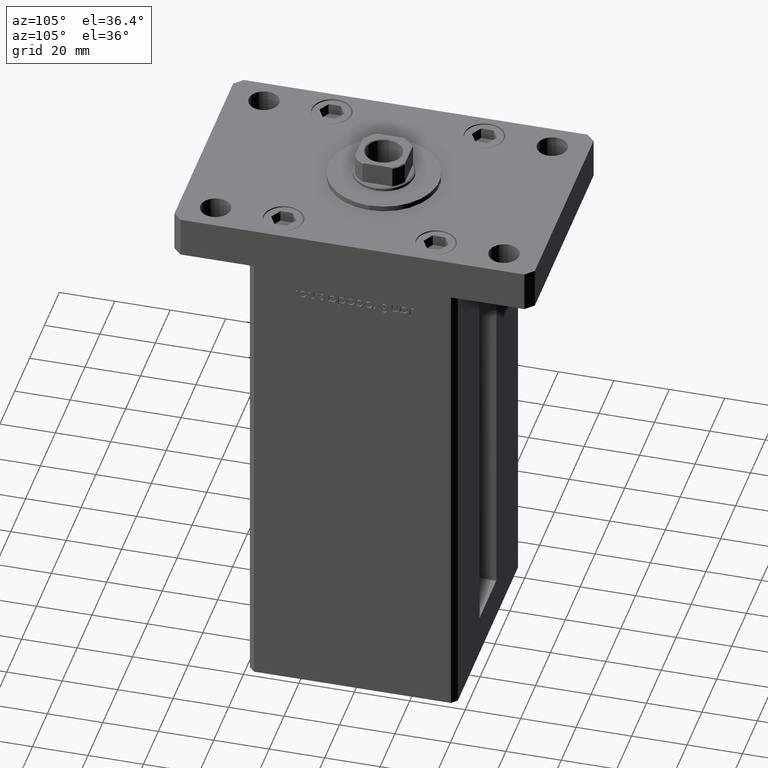
[diagram: clean part render]
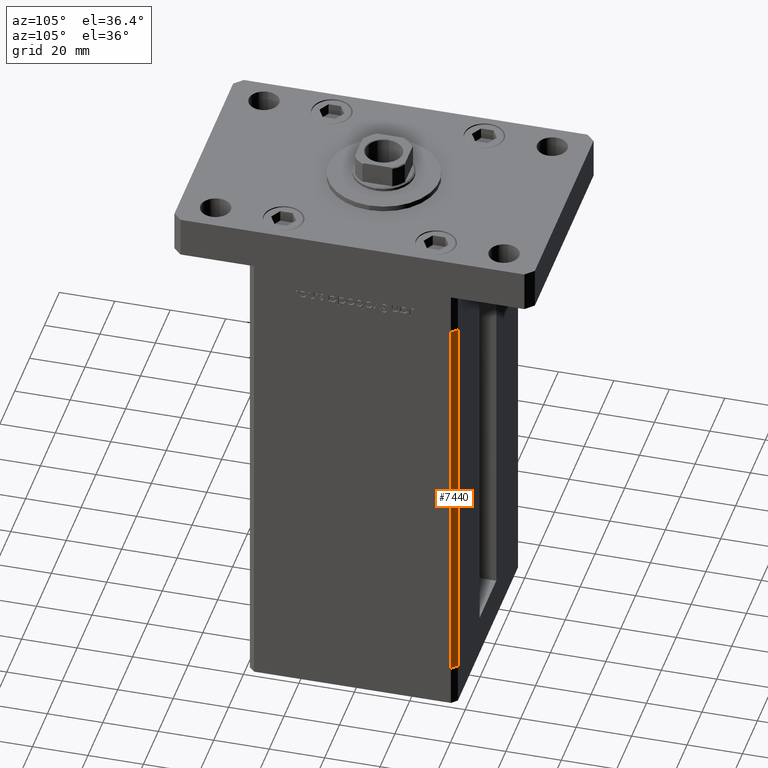
[diagram: same view with one face highlighted and labeled with its STEP entity id]
A machine part, auxiliary view. The second image highlights one B-rep face of the part: STEP entity #7440.
In plain terms, the highlighted planar face has unit normal (0.7071, 0.7071, 0).
Its self-contained STEP definition (entity closure, byte-faithful):
#1419 = DIRECTION ( 'NONE',  ( -0.000000000000000000, -0.000000000000000000, -1.000000000000000000 ) ) ;
#2758 = CARTESIAN_POINT ( 'NONE',  ( 40.50000000000000000, 37.50000000000000711, 145.5000000000000000 ) ) ;
#2964 = DIRECTION ( 'NONE',  ( 0.7071067811865500152, -0.7071067811865451302, 0.000000000000000000 ) ) ;
#4832 = EDGE_LOOP ( 'NONE', ( #30278, #45680, #12373, #52957 ) ) ;
#6549 = FACE_OUTER_BOUND ( 'NONE', #4832, .T. ) ;
#6933 = CARTESIAN_POINT ( 'NONE',  ( 42.50000000000000711, 35.50000000000001421, 145.5000000000000000 ) ) ;
#7227 = VERTEX_POINT ( 'NONE', #44588 ) ;
#7440 = ADVANCED_FACE ( 'NONE', ( #6549 ), #43451, .T. ) ;
#10121 = CARTESIAN_POINT ( 'NONE',  ( 40.50000000000000000, 37.50000000000000711, 145.5000000000000000 ) ) ;
#10690 = VERTEX_POINT ( 'NONE', #30423 ) ;
#12373 = ORIENTED_EDGE ( 'NONE', *, *, #33917, .T. ) ;
#15067 = DIRECTION ( 'NONE',  ( -0.000000000000000000, -0.000000000000000000, -1.000000000000000000 ) ) ;
#15870 = LINE ( 'NONE', #6933, #20014 ) ;
#16368 = VECTOR ( 'NONE', #2964, 1000.000000000000114 ) ;
#17934 = VECTOR ( 'NONE', #1419, 1000.000000000000000 ) ;
#19310 = DIRECTION ( 'NONE',  ( 0.7071067811865451302, 0.7071067811865500152, -0.000000000000000000 ) ) ;
#20014 = VECTOR ( 'NONE', #15067, 1000.000000000000000 ) ;
#23124 = DIRECTION ( 'NONE',  ( -0.7071067811865500152, 0.7071067811865451302, 0.000000000000000000 ) ) ;
#24972 = CARTESIAN_POINT ( 'NONE',  ( 40.50000000000000000, 37.50000000000000711, 0.000000000000000000 ) ) ;
#25820 = EDGE_CURVE ( 'NONE', #30072, #47936, #46722, .T. ) ;
#30072 = VERTEX_POINT ( 'NONE', #30643 ) ;
#30278 = ORIENTED_EDGE ( 'NONE', *, *, #31958, .F. ) ;
#30280 = VECTOR ( 'NONE', #47273, 1000.000000000000114 ) ;
#30423 = CARTESIAN_POINT ( 'NONE',  ( 42.50000000000000711, 35.50000000000001421, 145.5000000000000000 ) ) ;
#30643 = CARTESIAN_POINT ( 'NONE',  ( 40.50000000000000000, 37.50000000000000711, 145.5000000000000000 ) ) ;
#30929 = LINE ( 'NONE', #40126, #16368 ) ;
#31958 = EDGE_CURVE ( 'NONE', #47936, #7227, #30929, .T. ) ;
#33917 = EDGE_CURVE ( 'NONE', #30072, #10690, #42676, .T. ) ;
#34535 = AXIS2_PLACEMENT_3D ( 'NONE', #2758, #19310, #23124 ) ;
#38579 = CARTESIAN_POINT ( 'NONE',  ( 40.50000000000000000, 37.50000000000000711, 145.5000000000000000 ) ) ;
#40126 = CARTESIAN_POINT ( 'NONE',  ( 40.50000000000000000, 37.50000000000000711, 0.000000000000000000 ) ) ;
#42400 = EDGE_CURVE ( 'NONE', #10690, #7227, #15870, .T. ) ;
#42676 = LINE ( 'NONE', #10121, #30280 ) ;
#43451 = PLANE ( 'NONE',  #34535 ) ;
#44588 = CARTESIAN_POINT ( 'NONE',  ( 42.50000000000000711, 35.50000000000001421, 0.000000000000000000 ) ) ;
#45680 = ORIENTED_EDGE ( 'NONE', *, *, #25820, .F. ) ;
#46722 = LINE ( 'NONE', #38579, #17934 ) ;
#47273 = DIRECTION ( 'NONE',  ( 0.7071067811865500152, -0.7071067811865451302, 0.000000000000000000 ) ) ;
#47936 = VERTEX_POINT ( 'NONE', #24972 ) ;
#52957 = ORIENTED_EDGE ( 'NONE', *, *, #42400, .T. ) ;